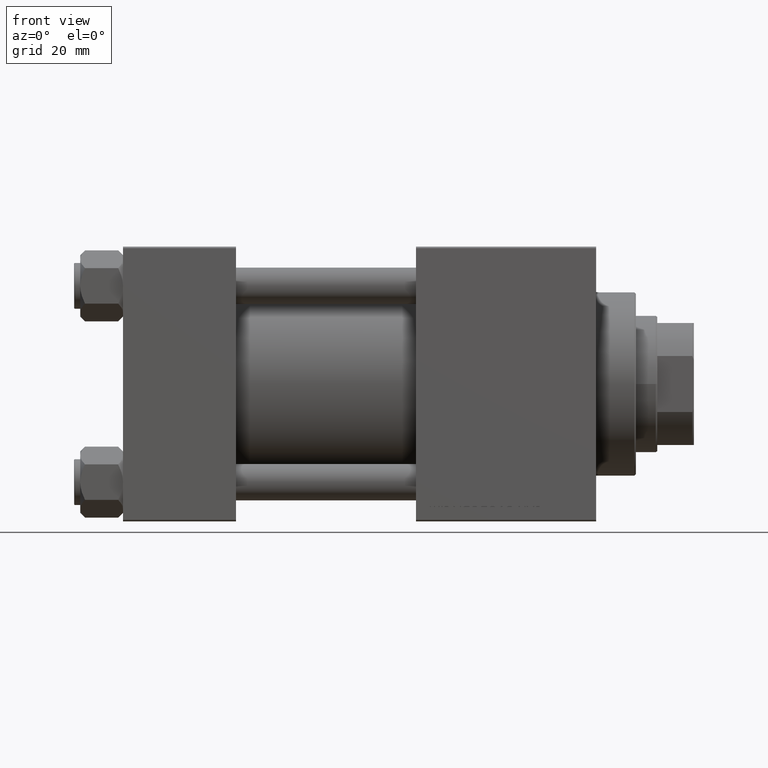
[diagram: clean part render]
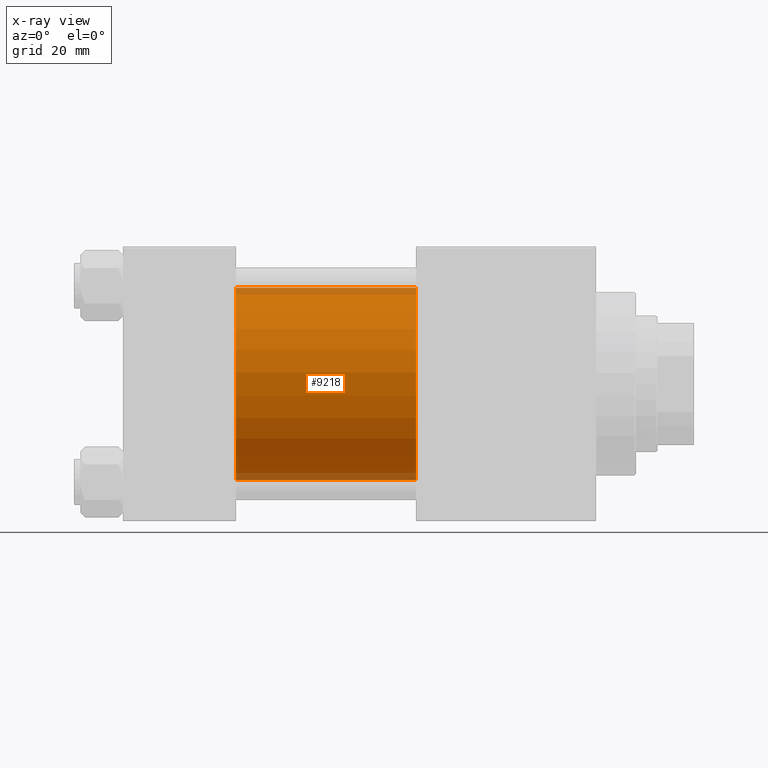
[diagram: x-ray — body ghosted, one internal face saturated and labeled with its STEP entity id]
A machine part, front view, then the same camera in x-ray: the body is ghosted and one INTERNAL B-rep face — a face not visible from any outside direction — is saturated and labeled: STEP entity #9218.
In plain terms, the highlighted cylindrical surface (partial cylindrical patch) has radius 31.5 mm, axis along (-1, -0, -0).
Its self-contained STEP definition (entity closure, byte-faithful):
#654 = CARTESIAN_POINT ( 'NONE',  ( 96.00000000000000000, -2.602085213965210642E-15, 31.50000000000000000 ) ) ;
#1035 = DIRECTION ( 'NONE',  ( 0.000000000000000000, 0.000000000000000000, 1.000000000000000000 ) ) ;
#2439 = CARTESIAN_POINT ( 'NONE',  ( 37.00000000000000000, -2.602085213965210642E-15, 0.000000000000000000 ) ) ;
#3780 = DIRECTION ( 'NONE',  ( -1.000000000000000000, -0.000000000000000000, -0.000000000000000000 ) ) ;
#4638 = CARTESIAN_POINT ( 'NONE',  ( 37.00000000000000000, -2.602085213965210642E-15, 31.50000000000000000 ) ) ;
#7993 = VERTEX_POINT ( 'NONE', #4638 ) ;
#9218 = ADVANCED_FACE ( 'NONE', ( #19535 ), #20291, .F. ) ;
#9481 = VECTOR ( 'NONE', #3780, 1000.000000000000000 ) ;
#11852 = ORIENTED_EDGE ( 'NONE', *, *, #30958, .T. ) ;
#14417 = EDGE_LOOP ( 'NONE', ( #11852, #21298, #20024, #43019 ) ) ;
#16323 = EDGE_CURVE ( 'NONE', #42329, #7993, #37030, .T. ) ;
#17645 = DIRECTION ( 'NONE',  ( 1.000000000000000000, 0.000000000000000000, 0.000000000000000000 ) ) ;
#18262 = DIRECTION ( 'NONE',  ( -1.000000000000000000, -0.000000000000000000, -0.000000000000000000 ) ) ;
#19535 = FACE_OUTER_BOUND ( 'NONE', #14417, .T. ) ;
#20024 = ORIENTED_EDGE ( 'NONE', *, *, #46119, .F. ) ;
#20291 = CYLINDRICAL_SURFACE ( 'NONE', #37913, 31.50000000000000000 ) ;
#20628 = LINE ( 'NONE', #32305, #45419 ) ;
#21298 = ORIENTED_EDGE ( 'NONE', *, *, #26386, .T. ) ;
#22786 = CARTESIAN_POINT ( 'NONE',  ( 96.00000000000000000, -2.602085213965210642E-15, 31.50000000000000000 ) ) ;
#24923 = CARTESIAN_POINT ( 'NONE',  ( 37.00000000000000000, 1.255552203348951850E-15, -31.50000000000000000 ) ) ;
#26386 = EDGE_CURVE ( 'NONE', #39337, #37526, #20628, .T. ) ;
#26733 = DIRECTION ( 'NONE',  ( 0.000000000000000000, 0.000000000000000000, -1.000000000000000000 ) ) ;
#26978 = CARTESIAN_POINT ( 'NONE',  ( 96.00000000000000000, -2.602085213965210642E-15, 0.000000000000000000 ) ) ;
#28743 = AXIS2_PLACEMENT_3D ( 'NONE', #2439, #17645, #37414 ) ;
#30949 = CARTESIAN_POINT ( 'NONE',  ( 96.00000000000000000, -2.602085213965210642E-15, 0.000000000000000000 ) ) ;
#30958 = EDGE_CURVE ( 'NONE', #42329, #39337, #35736, .T. ) ;
#32305 = CARTESIAN_POINT ( 'NONE',  ( 96.00000000000000000, 1.255552203348951850E-15, -31.50000000000000000 ) ) ;
#33850 = CARTESIAN_POINT ( 'NONE',  ( 96.00000000000000000, 1.255552203348951850E-15, -31.50000000000000000 ) ) ;
#35736 = CIRCLE ( 'NONE', #43033, 31.50000000000000000 ) ;
#35769 = DIRECTION ( 'NONE',  ( -1.000000000000000000, -0.000000000000000000, -0.000000000000000000 ) ) ;
#37030 = LINE ( 'NONE', #22786, #9481 ) ;
#37414 = DIRECTION ( 'NONE',  ( 0.000000000000000000, 0.000000000000000000, -1.000000000000000000 ) ) ;
#37526 = VERTEX_POINT ( 'NONE', #24923 ) ;
#37632 = CIRCLE ( 'NONE', #28743, 31.50000000000000000 ) ;
#37913 = AXIS2_PLACEMENT_3D ( 'NONE', #30949, #35769, #1035 ) ;
#39337 = VERTEX_POINT ( 'NONE', #33850 ) ;
#42329 = VERTEX_POINT ( 'NONE', #654 ) ;
#42434 = DIRECTION ( 'NONE',  ( 1.000000000000000000, 0.000000000000000000, 0.000000000000000000 ) ) ;
#43019 = ORIENTED_EDGE ( 'NONE', *, *, #16323, .F. ) ;
#43033 = AXIS2_PLACEMENT_3D ( 'NONE', #26978, #42434, #26733 ) ;
#45419 = VECTOR ( 'NONE', #18262, 1000.000000000000000 ) ;
#46119 = EDGE_CURVE ( 'NONE', #7993, #37526, #37632, .T. ) ;